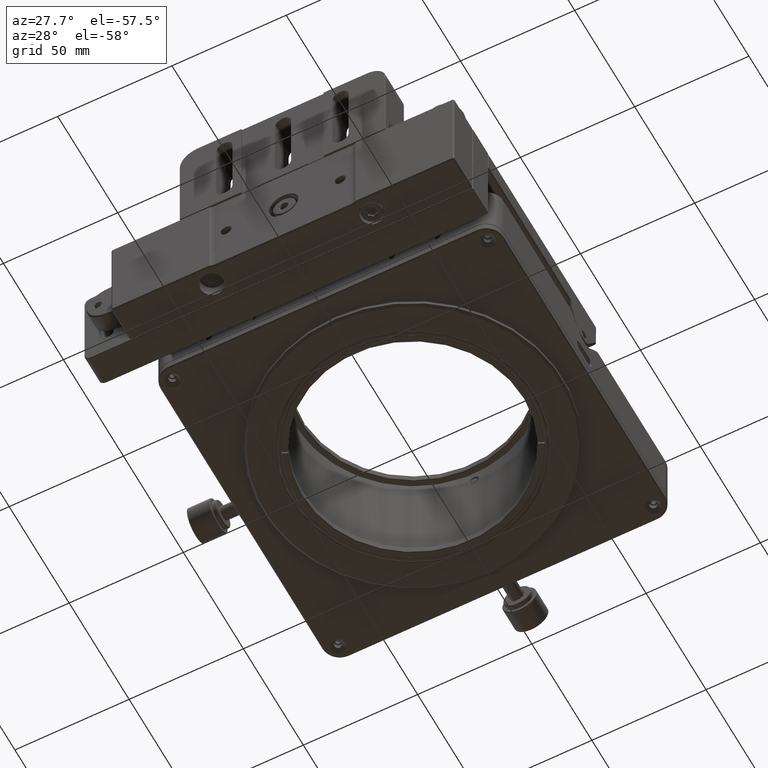
[diagram: clean part render]
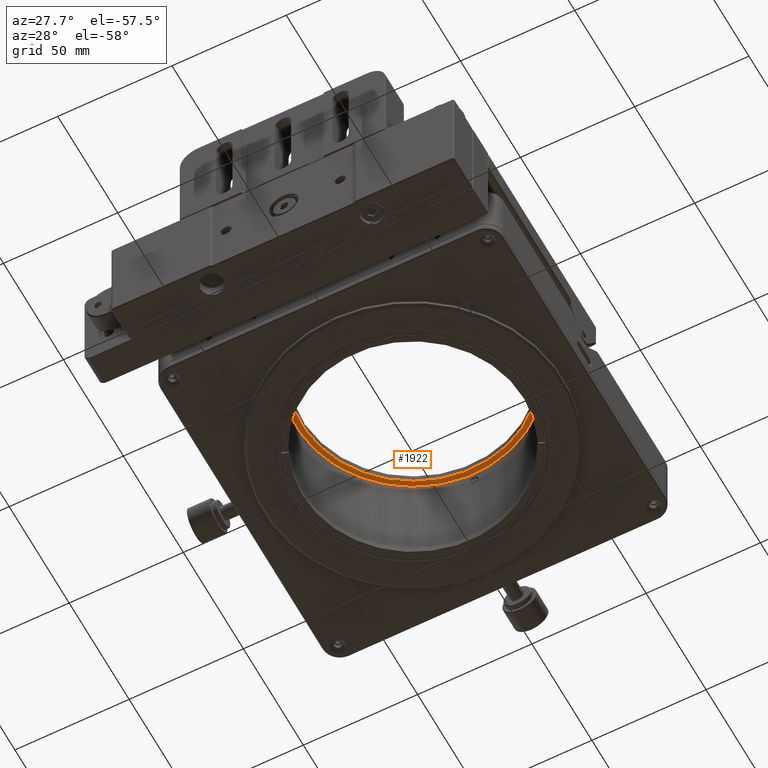
[diagram: same view with one face highlighted and labeled with its STEP entity id]
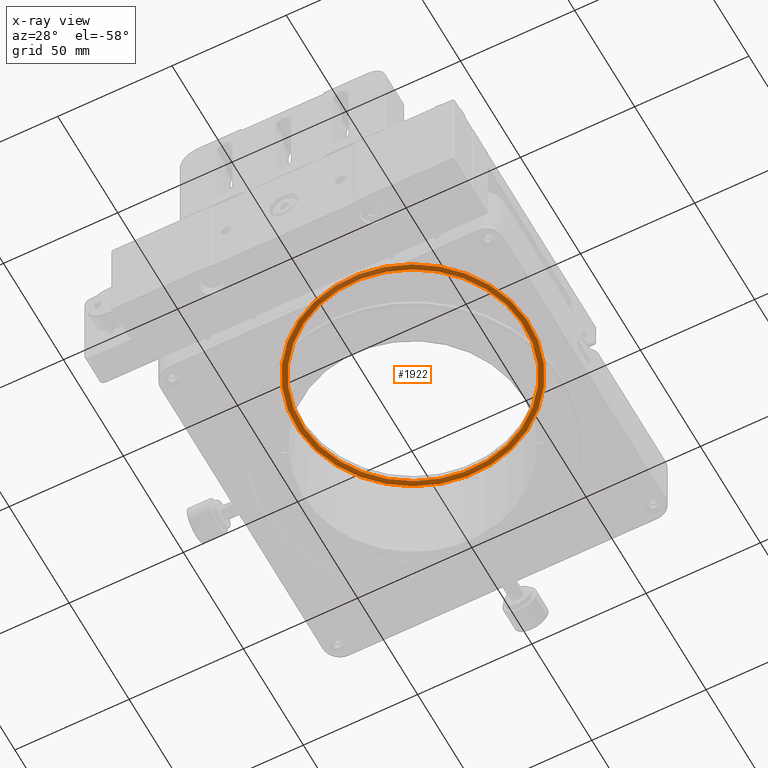
[diagram: x-ray of the same camera — body ghosted, the highlighted face saturated]
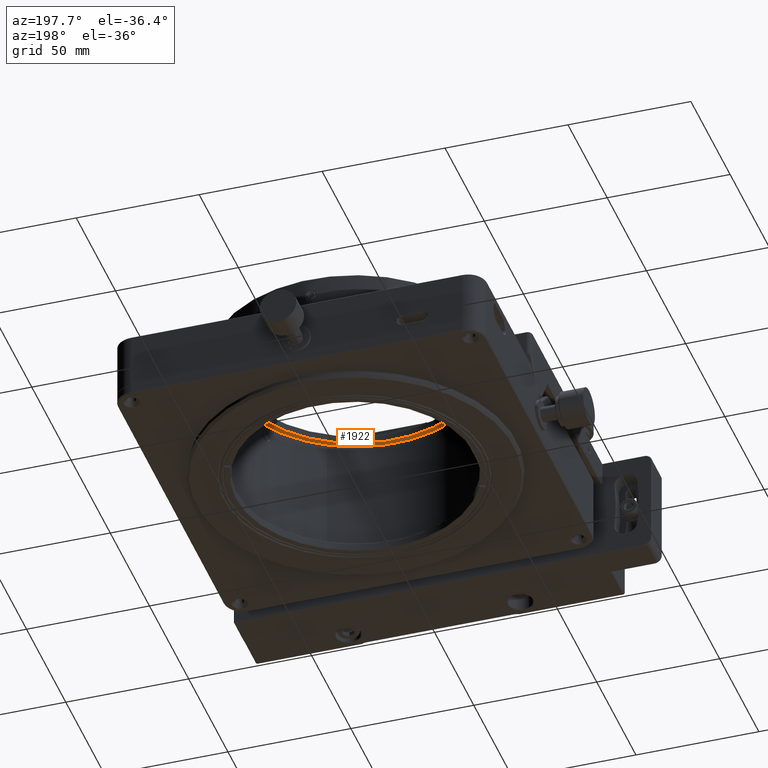
[diagram: same view with one face highlighted and labeled with its STEP entity id]
A machine part, auxiliary view. The second image highlights one B-rep face of the part: STEP entity #1922.
The next image is the same camera in x-ray: the body ghosted, the highlighted face saturated — about 62% of this face is hidden behind the body in this view.
A second angle (auxiliary view) of the same face is appended — the face is thin or edge-on in the first view.
In plain terms, the highlighted planar face has unit normal (0, 0, 1).
Its self-contained STEP definition (entity closure, byte-faithful):
#1922 = ADVANCED_FACE ( 'NONE', ( #44417, #69200 ), #37913, .F. ) ;
#3123 = VERTEX_POINT ( 'NONE', #74313 ) ;
#6686 = CIRCLE ( 'NONE', #61183, 50.99449999999998084 ) ;
#8925 = CARTESIAN_POINT ( 'NONE',  ( -4.542001405132489455E-14, 100.9000000000000057, 27.69999999999999929 ) ) ;
#13500 = DIRECTION ( 'NONE',  ( 0.000000000000000000, -1.000000000000000000, 5.568915337801359241E-17 ) ) ;
#14090 = DIRECTION ( 'NONE',  ( -2.547744655043525204E-18, -5.629695060032849058E-17, -1.000000000000000000 ) ) ;
#20176 = DIRECTION ( 'NONE',  ( -0.9989775417337624086, 0.04520919277723474405, 0.000000000000000000 ) ) ;
#22205 = EDGE_CURVE ( 'NONE', #39782, #3123, #50872, .T. ) ;
#22782 = CARTESIAN_POINT ( 'NONE',  ( -4.542001405132489455E-14, 100.9000000000000057, 27.69999999999999929 ) ) ;
#24886 = CARTESIAN_POINT ( 'NONE',  ( -4.542001405132489455E-14, 100.9000000000000057, 27.69999999999999929 ) ) ;
#25477 = CARTESIAN_POINT ( 'NONE',  ( -4.542001405132489455E-14, 100.9000000000000057, 27.69999999999999929 ) ) ;
#25519 = EDGE_CURVE ( 'NONE', #3123, #39782, #66459, .T. ) ;
#25697 = DIRECTION ( 'NONE',  ( 1.597810555559200111E-17, 5.568915337801359241E-17, 1.000000000000000000 ) ) ;
#29426 = EDGE_LOOP ( 'NONE', ( #32561, #55565 ) ) ;
#31201 = DIRECTION ( 'NONE',  ( -2.547744655043525204E-18, -5.629695060032849058E-17, -1.000000000000000000 ) ) ;
#32561 = ORIENTED_EDGE ( 'NONE', *, *, #22205, .T. ) ;
#32708 = CARTESIAN_POINT ( 'NONE',  ( -50.94236025194240369, 103.2054201810786083, 27.69999999999999929 ) ) ;
#37358 = VERTEX_POINT ( 'NONE', #32708 ) ;
#37913 = PLANE ( 'NONE',  #74932 ) ;
#39782 = VERTEX_POINT ( 'NONE', #67598 ) ;
#40256 = DIRECTION ( 'NONE',  ( 2.547744655043520196E-18, 5.629695060032849058E-17, 1.000000000000000000 ) ) ;
#41449 = ORIENTED_EDGE ( 'NONE', *, *, #57614, .T. ) ;
#42348 = EDGE_CURVE ( 'NONE', #37358, #48698, #48905, .T. ) ;
#44417 = FACE_BOUND ( 'NONE', #29426, .T. ) ;
#47144 = DIRECTION ( 'NONE',  ( -0.9989775417337622976, 0.04520919277723466773, 0.000000000000000000 ) ) ;
#48698 = VERTEX_POINT ( 'NONE', #49524 ) ;
#48905 = CIRCLE ( 'NONE', #73566, 50.99449999999998084 ) ;
#49524 = CARTESIAN_POINT ( 'NONE',  ( 50.94236025194229711, 98.59457981892118994, 27.69999999999999929 ) ) ;
#50872 = CIRCLE ( 'NONE', #56030, 48.64999999999998437 ) ;
#52825 = DIRECTION ( 'NONE',  ( 2.547744655043520196E-18, 5.629695060032849058E-17, 1.000000000000000000 ) ) ;
#53243 = DIRECTION ( 'NONE',  ( -0.9989775417337622976, 0.04520919277723466773, 0.000000000000000000 ) ) ;
#55565 = ORIENTED_EDGE ( 'NONE', *, *, #25519, .T. ) ;
#56030 = AXIS2_PLACEMENT_3D ( 'NONE', #61629, #40256, #53243 ) ;
#57614 = EDGE_CURVE ( 'NONE', #48698, #37358, #6686, .T. ) ;
#60193 = DIRECTION ( 'NONE',  ( -0.9989775417337624086, 0.04520919277723474405, 0.000000000000000000 ) ) ;
#61183 = AXIS2_PLACEMENT_3D ( 'NONE', #22782, #31201, #60193 ) ;
#61629 = CARTESIAN_POINT ( 'NONE',  ( -4.542001405132489455E-14, 100.9000000000000057, 27.69999999999999929 ) ) ;
#63746 = ORIENTED_EDGE ( 'NONE', *, *, #42348, .T. ) ;
#63838 = AXIS2_PLACEMENT_3D ( 'NONE', #8925, #52825, #47144 ) ;
#66459 = CIRCLE ( 'NONE', #63838, 48.64999999999998437 ) ;
#67598 = CARTESIAN_POINT ( 'NONE',  ( 48.60025740534749872, 98.70057277138739948, 27.69999999999999929 ) ) ;
#69200 = FACE_OUTER_BOUND ( 'NONE', #70981, .T. ) ;
#70981 = EDGE_LOOP ( 'NONE', ( #63746, #41449 ) ) ;
#73566 = AXIS2_PLACEMENT_3D ( 'NONE', #25477, #14090, #20176 ) ;
#74313 = CARTESIAN_POINT ( 'NONE',  ( -48.60025740534759819, 103.0994272286123987, 27.69999999999999929 ) ) ;
#74932 = AXIS2_PLACEMENT_3D ( 'NONE', #24886, #25697, #13500 ) ;